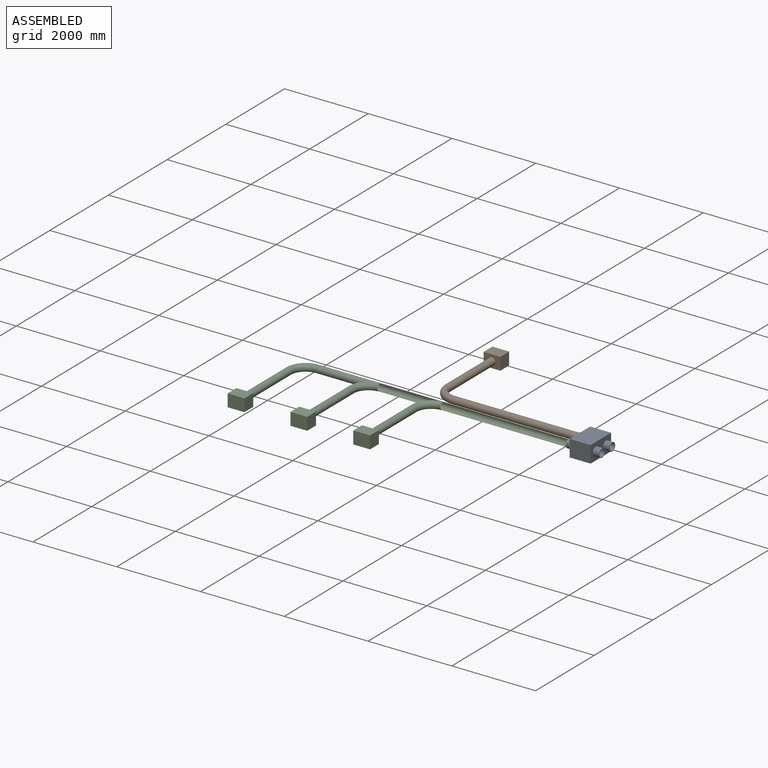
[diagram: assembled view]
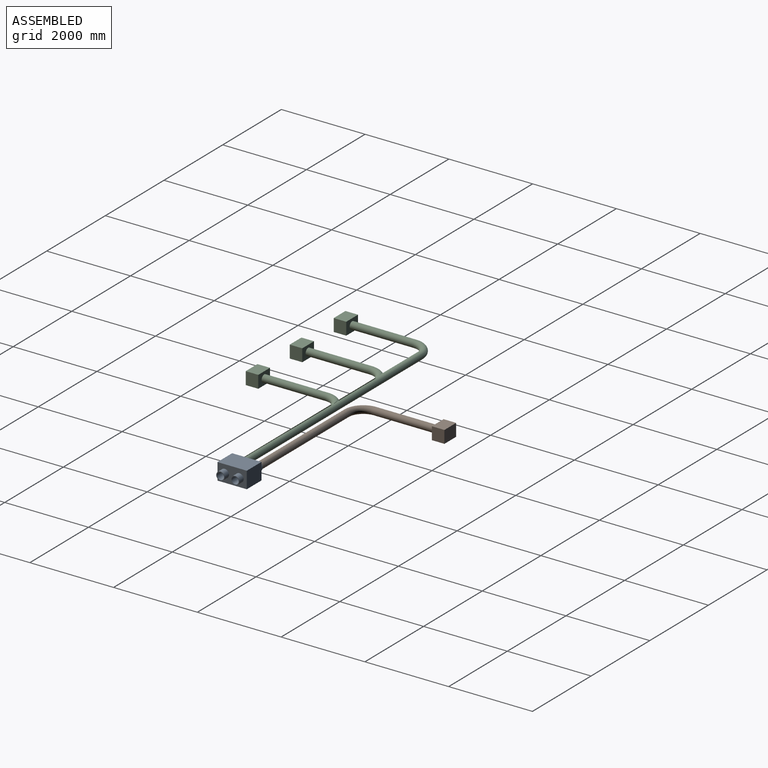
[diagram: assembled view, second angle]
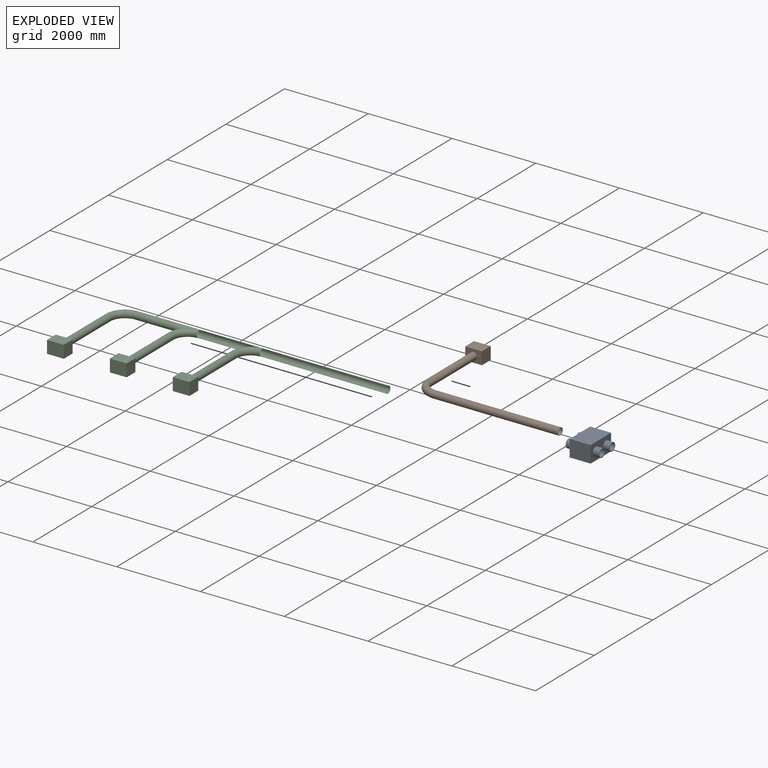
[diagram: exploded view]
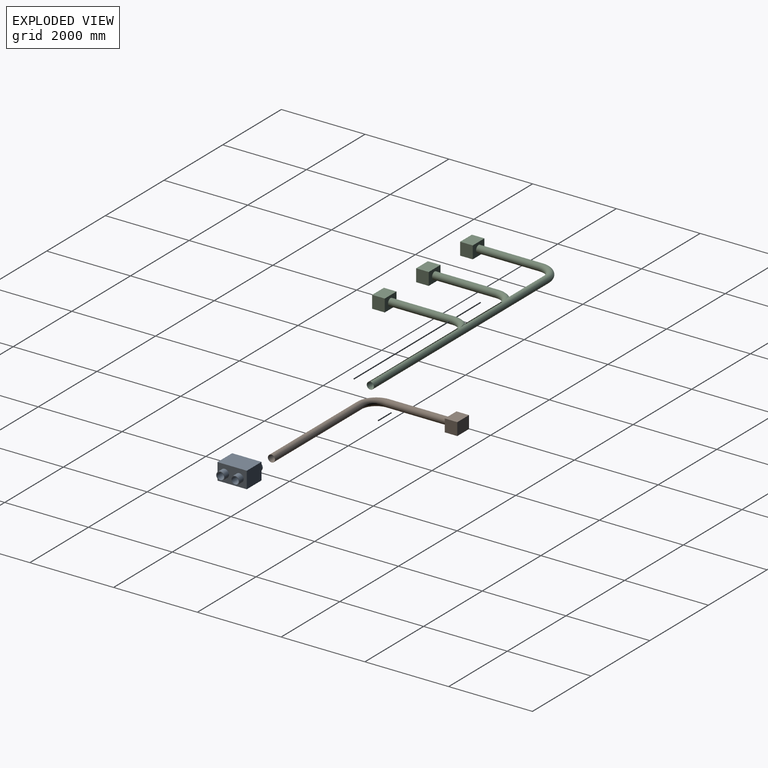
[diagram: exploded view, second angle]
ASSEMBLY  parts=3 mates=2
PART A: 16 faces, bbox 700x800x400 mm
  f0: cylinder r=100mm len=200mm, axis (0,1,0), area 94247.8mm2, adj f1,f3
  f1: plane 200x200mm, normal (0,-1,0), area 8717.9mm2, adj f0,f2
  f2: cylinder r=85mm len=800mm, axis (0,-1,0), area 427256.6mm2, adj f1,f13
  f3: plane 700x400mm, normal (0,-1,0), area 217168.1mm2, adj f0,f4,f8,f9,f10,f11
  f4: cylinder r=100mm len=200mm, axis (0,1,0), area 94247.8mm2, adj f3,f5
  f5: plane 200x200mm, normal (0,-1,0), area 8717.9mm2, adj f4,f6
  f6: cylinder r=85mm len=800mm, axis (0,-1,0), area 427256.6mm2, adj f5,f15
  f7: plane 700x400mm, normal (0,1,0), area 217168.1mm2, adj f8,f9,f10,f11,f12,f14
  f8: plane 500x400mm, normal (-1,0,0), area 200000mm2, adj f3,f7,f10,f11
  f9: plane 500x400mm, normal (1,0,0), area 200000mm2, adj f3,f7,f10,f11
  f10: plane 700x500mm, normal (0,0,1), area 350000mm2, adj f3,f7,f8,f9
  f11: plane 700x500mm, normal (0,0,-1), area 350000mm2, adj f3,f7,f8,f9
  f12: cylinder r=100mm len=200mm, axis (0,-1,0), area 94247.8mm2, adj f7,f13
  f13: plane 200x200mm, normal (0,1,0), area 8717.9mm2, adj f2,f12
  f14: cylinder r=100mm len=200mm, axis (0,-1,0), area 94247.8mm2, adj f7,f15
  f15: plane 200x200mm, normal (0,1,0), area 8717.9mm2, adj f6,f14
PART B: 19 faces, bbox 3600x2322x300 mm
  f0: cylinder r=85mm len=170mm, axis (0,-1,0), area 23388.3mm2, adj f7,f15
  f1: cylinder r=85mm len=170mm, axis (0,-1,0), area 14331.8mm2, adj f7,f10
  f2: plane 400x300mm, normal (0,0,1), area 120000mm2, adj f3,f5,f6,f9
  f3: plane 300x300mm, normal (1,0,0), area 90000mm2, adj f2,f4,f6,f9
  f4: plane 400x300mm, normal (0,0,-1), area 88584.1mm2, adj f3,f5,f6,f7,f9
  f5: plane 300x300mm, normal (-1,0,0), area 90000mm2, adj f2,f4,f6,f9
  f6: plane 400x300mm, normal (0,-1,0), area 97302mm2, adj f2,f3,f4,f5,f14
  f7: cylinder r=100mm len=250mm, axis (0,0,-1), area 105601.3mm2, adj f0,f1,f4,f8
  f8: plane 200x200mm, normal (0,0,-1), area 31415.9mm2, adj f7
  f9: plane 400x300mm, normal (0,1,0), area 120000mm2, adj f2,f3,f4,f5
  f10: plane 170x170mm, normal (0,-1,0), area 22698mm2, adj f1
  f11: torus R=400mm, axis (0,0,-1), area 335566.5mm2, adj f12,f14
  f12: cylinder r=85mm len=3000mm, axis (-1,0,0), area 1602212.3mm2, adj f11,f13
  f13: plane 170x170mm, normal (1,0,0), area 1315.5mm2, adj f12,f16
  f14: cylinder r=85mm len=1497mm, axis (0,1,0), area 799503.9mm2, adj f6,f11
  f15: plane 170x170mm, normal (0,1,0), area 1315.5mm2, adj f0,f18
  f16: cylinder r=82.5mm len=3000mm, axis (-1,0,0), area 1555088.4mm2, adj f13,f17
  f17: torus R=400mm, axis (0,0,-1), area 325696.9mm2, adj f16,f18
  f18: cylinder r=82.5mm len=1500mm, axis (0,1,0), area 777544.2mm2, adj f15,f17
PART C: 59 faces, bbox 6600x2322x300 mm
  f0: torus R=400mm, axis (0,0,-1), area 78805mm2, adj f4
  f1: cylinder r=85mm len=6000mm, axis (-1,0,0), area 3054147.6mm2, adj f2,f3,f21,f39
  f2: torus R=400mm, axis (0,0,-1), area 253022.5mm2, adj f1,f18
  f3: plane 170x170mm, normal (1,0,0), area 1315.5mm2, adj f1,f4
  f4: cylinder r=82.5mm len=3363.32mm, axis (-1,0,0), area 1626903.2mm2, adj f0,f3
  f5: torus R=400mm, axis (0,0,-1), area 228681.3mm2, adj f17,f20
  f6: plane 400x300mm, normal (0,0,1), area 120000mm2, adj f7,f9,f14,f19
  f7: plane 300x300mm, normal (1,0,0), area 90000mm2, adj f6,f8,f14,f19
  f8: plane 400x300mm, normal (0,0,-1), area 88584.1mm2, adj f7,f9,f12,f14,f19
  f9: plane 300x300mm, normal (-1,0,0), area 90000mm2, adj f6,f8,f14,f19
  f10: cylinder r=85mm len=170mm, axis (0,1,0), area 23411mm2, adj f12,f16
  f11: cylinder r=85mm len=170mm, axis (0,1,0), area 14309.1mm2, adj f12,f15
  f12: cylinder r=100mm len=250mm, axis (0,0,-1), area 105741.2mm2, adj f8,f10,f11,f13
  f13: plane 200x200mm, normal (0,0,-1), area 31415.9mm2, adj f12
  f14: plane 400x300mm, normal (0,-1,0), area 120000mm2, adj f6,f7,f8,f9
  f15: plane 170x170mm, normal (0,1,0), area 22698mm2, adj f11
  f16: plane 170x170mm, normal (0,-1,0), area 1315.5mm2, adj f10,f17
  f17: cylinder r=82.5mm len=1500mm, axis (0,-1,0), area 777544.2mm2, adj f5,f16
  f18: cylinder r=85mm len=1497mm, axis (0,-1,0), area 799503.9mm2, adj f2,f19
  f19: plane 400x300mm, normal (0,1,0), area 97302mm2, adj f6,f7,f8,f9,f18
  f20: cylinder r=85mm len=325.73mm, axis (-1,0,0), area 56549.5mm2, adj f5
  f21: torus R=400mm, axis (0,0,-1), area 253022.5mm2, adj f1,f25
  f22: torus R=400mm, axis (0,0,-1), area 228681.3mm2, adj f24,f37
  f23: plane 170x170mm, normal (0,-1,0), area 1315.5mm2, adj f24,f31
  f24: cylinder r=82.5mm len=1500mm, axis (0,-1,0), area 777544.2mm2, adj f22,f23
  f25: cylinder r=85mm len=1497mm, axis (0,-1,0), area 799503.9mm2, adj f21,f26
  f26: plane 400x300mm, normal (0,1,0), area 97302mm2, adj f25,f27,f28,f29,f30
  f27: plane 300x300mm, normal (-1,0,0), area 90000mm2, adj f26,f28,f30,f35
  f28: plane 400x300mm, normal (0,0,-1), area 88584.1mm2, adj f26,f27,f29,f33,f35
  f29: plane 300x300mm, normal (1,0,0), area 90000mm2, adj f26,f28,f30,f35
  f30: plane 400x300mm, normal (0,0,1), area 120000mm2, adj f26,f27,f29,f35
  f31: cylinder r=85mm len=170mm, axis (0,1,0), area 23411mm2, adj f23,f33
  f32: cylinder r=85mm len=170mm, axis (0,1,0), area 14309.1mm2, adj f33,f36
  f33: cylinder r=100mm len=250mm, axis (0,0,-1), area 105741.2mm2, adj f28,f31,f32,f34
  f34: plane 200x200mm, normal (0,0,-1), area 31415.9mm2, adj f33
  f35: plane 400x300mm, normal (0,-1,0), area 120000mm2, adj f27,f28,f29,f30
  f36: plane 170x170mm, normal (0,1,0), area 22698mm2, adj f32
  f37: cylinder r=85mm len=325.73mm, axis (-1,0,0), area 56549.5mm2, adj f22
  f38: cylinder r=82.5mm len=1450.82mm, axis (-1,0,0), area 685758.1mm2, adj f40,f55
  f39: torus R=400mm, axis (0,0,-1), area 335566.5mm2, adj f1,f43
  f40: torus R=400mm, axis (0,0,-1), area 325696.9mm2, adj f38,f42
  f41: plane 170x170mm, normal (0,-1,0), area 1315.5mm2, adj f42,f49
  f42: cylinder r=82.5mm len=1500mm, axis (0,-1,0), area 777544.2mm2, adj f40,f41
  f43: cylinder r=85mm len=1497mm, axis (0,-1,0), area 799503.9mm2, adj f39,f44
  f44: plane 400x300mm, normal (0,1,0), area 97302mm2, adj f43,f45,f46,f47,f48
  f45: plane 300x300mm, normal (-1,0,0), area 90000mm2, adj f44,f46,f48,f53
  f46: plane 400x300mm, normal (0,0,-1), area 88584.1mm2, adj f44,f45,f47,f51,f53
  f47: plane 300x300mm, normal (1,0,0), area 90000mm2, adj f44,f46,f48,f53
  f48: plane 400x300mm, normal (0,0,1), area 120000mm2, adj f44,f45,f47,f53
  f49: cylinder r=85mm len=170mm, axis (0,1,0), area 23411mm2, adj f41,f51
  f50: cylinder r=85mm len=170mm, axis (0,1,0), area 14309.1mm2, adj f51,f54
  f51: cylinder r=100mm len=250mm, axis (0,0,-1), area 105741.2mm2, adj f46,f49,f50,f52
  f52: plane 200x200mm, normal (0,0,-1), area 31415.9mm2, adj f51
  f53: plane 400x300mm, normal (0,-1,0), area 120000mm2, adj f45,f46,f47,f48
  f54: plane 170x170mm, normal (0,1,0), area 22698mm2, adj f50
  f55: torus R=400mm, axis (0,0,-1), area 62175.7mm2, adj f38
  f56: torus R=400mm, axis (0,0,-1), area 62151.3mm2, adj f58
  f57: torus R=400mm, axis (0,0,-1), area 78805mm2, adj f58
  f58: cylinder r=82.5mm len=1814.14mm, axis (-1,0,0), area 757500.5mm2, adj f56,f57
PLACE A rot(axis=(0,0,-1),90deg) t=(767.24,1342.35,375.11)mm
PLACE B t=(367.24,1517.35,575.11)mm
PLACE C t=(367.24,1167.35,575.11)mm
MATE fastened C.f4 <-> A.f4  axis (1,0,0) through (367.24,1167.35,575.11)mm
MATE fastened B.f16 <-> A.f0  axis (-1,0,0) through (367.24,1517.35,575.11)mm
